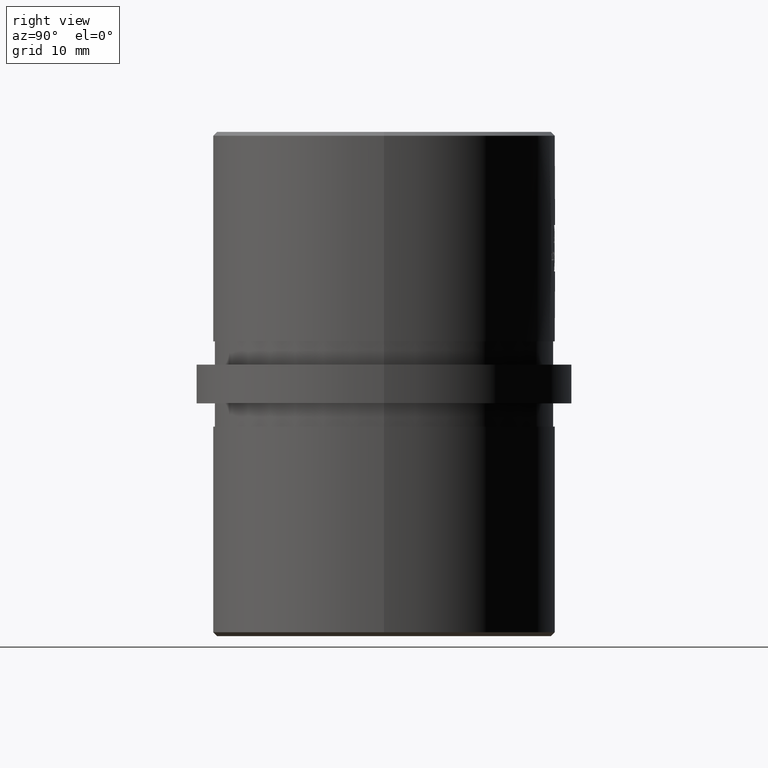
[diagram: clean part render]
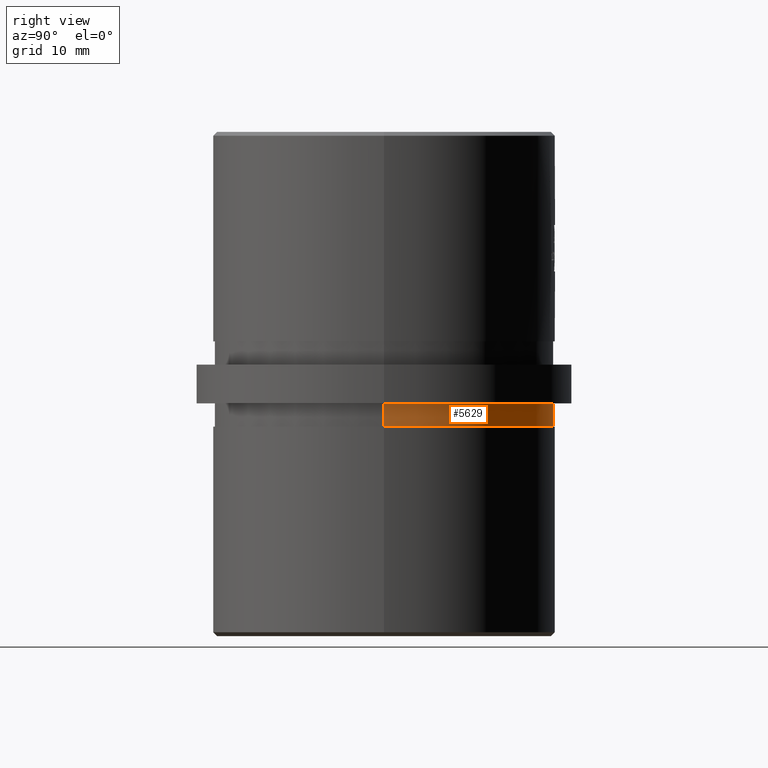
[diagram: same view with one face highlighted and labeled with its STEP entity id]
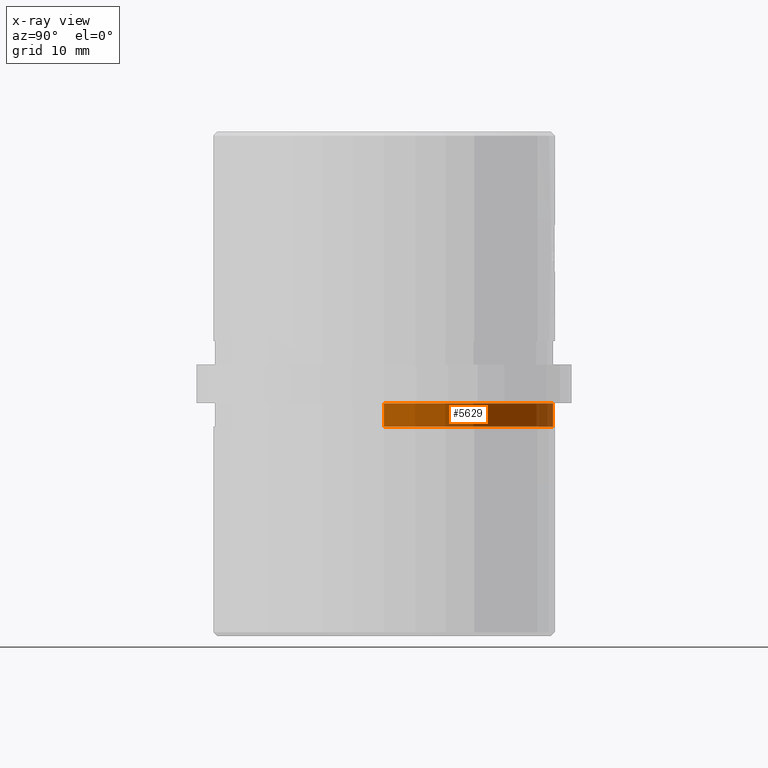
[diagram: x-ray of the same camera — body ghosted, the highlighted face saturated]
A machine part, right view. The second image highlights one B-rep face of the part: STEP entity #5629.
The next image is the same camera in x-ray: the body ghosted, the highlighted face saturated — about 0% of this face is hidden behind the body in this view.
In plain terms, the highlighted cylindrical surface (partial cylindrical patch) has radius 21.9 mm, axis along (-0, -0, 1).
Its self-contained STEP definition (entity closure, byte-faithful):
#451 = EDGE_CURVE ( 'NONE', #15731, #3504, #15325, .T. ) ;
#930 = EDGE_CURVE ( 'NONE', #13901, #15731, #6101, .T. ) ;
#1669 = ORIENTED_EDGE ( 'NONE', *, *, #451, .F. ) ;
#3504 = VERTEX_POINT ( 'NONE', #10343 ) ;
#3602 = CARTESIAN_POINT ( 'NONE',  ( 21.89999999999999900, -2.681976490132703500E-015, -5.500000000000000000 ) ) ;
#3666 = DIRECTION ( 'NONE',  ( -0.0000000000000000000, -0.0000000000000000000, 1.000000000000000000 ) ) ;
#4046 = AXIS2_PLACEMENT_3D ( 'NONE', #15894, #19300, #10914 ) ;
#4169 = CYLINDRICAL_SURFACE ( 'NONE', #19301, 21.89999999999999900 ) ;
#5629 = ADVANCED_FACE ( 'NONE', ( #18949 ), #4169, .T. ) ;
#6101 = LINE ( 'NONE', #3602, #19022 ) ;
#6717 = DIRECTION ( 'NONE',  ( 1.000000000000000000, 0.0000000000000000000, 0.0000000000000000000 ) ) ;
#6855 = CARTESIAN_POINT ( 'NONE',  ( 21.89999999999999900, -2.681976490132703500E-015, -2.500000000000000000 ) ) ;
#8967 = DIRECTION ( 'NONE',  ( -0.0000000000000000000, -0.0000000000000000000, 1.000000000000000000 ) ) ;
#10338 = EDGE_LOOP ( 'NONE', ( #13035, #11724, #19400, #1669 ) ) ;
#10343 = CARTESIAN_POINT ( 'NONE',  ( -21.89999999999999900, 0.0000000000000000000, -2.500000000000000000 ) ) ;
#10652 = EDGE_CURVE ( 'NONE', #13901, #17286, #12255, .T. ) ;
#10914 = DIRECTION ( 'NONE',  ( 1.000000000000000000, 0.0000000000000000000, 0.0000000000000000000 ) ) ;
#11093 = DIRECTION ( 'NONE',  ( -1.000000000000000000, 0.0000000000000000000, 0.0000000000000000000 ) ) ;
#11608 = AXIS2_PLACEMENT_3D ( 'NONE', #15405, #13563, #6717 ) ;
#11724 = ORIENTED_EDGE ( 'NONE', *, *, #10652, .T. ) ;
#12255 = CIRCLE ( 'NONE', #11608, 21.89999999999999900 ) ;
#12432 = CARTESIAN_POINT ( 'NONE',  ( -21.89999999999999900, 0.0000000000000000000, -5.500000000000000000 ) ) ;
#13035 = ORIENTED_EDGE ( 'NONE', *, *, #930, .F. ) ;
#13563 = DIRECTION ( 'NONE',  ( -0.0000000000000000000, -0.0000000000000000000, 1.000000000000000000 ) ) ;
#13901 = VERTEX_POINT ( 'NONE', #16816 ) ;
#15325 = CIRCLE ( 'NONE', #4046, 21.89999999999999900 ) ;
#15405 = CARTESIAN_POINT ( 'NONE',  ( 0.0000000000000000000, 0.0000000000000000000, -5.500000000000000000 ) ) ;
#15731 = VERTEX_POINT ( 'NONE', #6855 ) ;
#15894 = CARTESIAN_POINT ( 'NONE',  ( 0.0000000000000000000, 0.0000000000000000000, -2.500000000000000000 ) ) ;
#16816 = CARTESIAN_POINT ( 'NONE',  ( 21.89999999999999900, -2.681976490132703500E-015, -5.500000000000000000 ) ) ;
#17286 = VERTEX_POINT ( 'NONE', #18277 ) ;
#17613 = VECTOR ( 'NONE', #8967, 1000.000000000000000 ) ;
#17781 = DIRECTION ( 'NONE',  ( -0.0000000000000000000, -0.0000000000000000000, 1.000000000000000000 ) ) ;
#18277 = CARTESIAN_POINT ( 'NONE',  ( -21.89999999999999900, 0.0000000000000000000, -5.500000000000000000 ) ) ;
#18699 = LINE ( 'NONE', #12432, #17613 ) ;
#18949 = FACE_OUTER_BOUND ( 'NONE', #10338, .T. ) ;
#19022 = VECTOR ( 'NONE', #3666, 1000.000000000000000 ) ;
#19300 = DIRECTION ( 'NONE',  ( -0.0000000000000000000, -0.0000000000000000000, 1.000000000000000000 ) ) ;
#19301 = AXIS2_PLACEMENT_3D ( 'NONE', #21068, #17781, #11093 ) ;
#19400 = ORIENTED_EDGE ( 'NONE', *, *, #21020, .T. ) ;
#21020 = EDGE_CURVE ( 'NONE', #17286, #3504, #18699, .T. ) ;
#21068 = CARTESIAN_POINT ( 'NONE',  ( 0.0000000000000000000, 0.0000000000000000000, -5.500000000000000000 ) ) ;